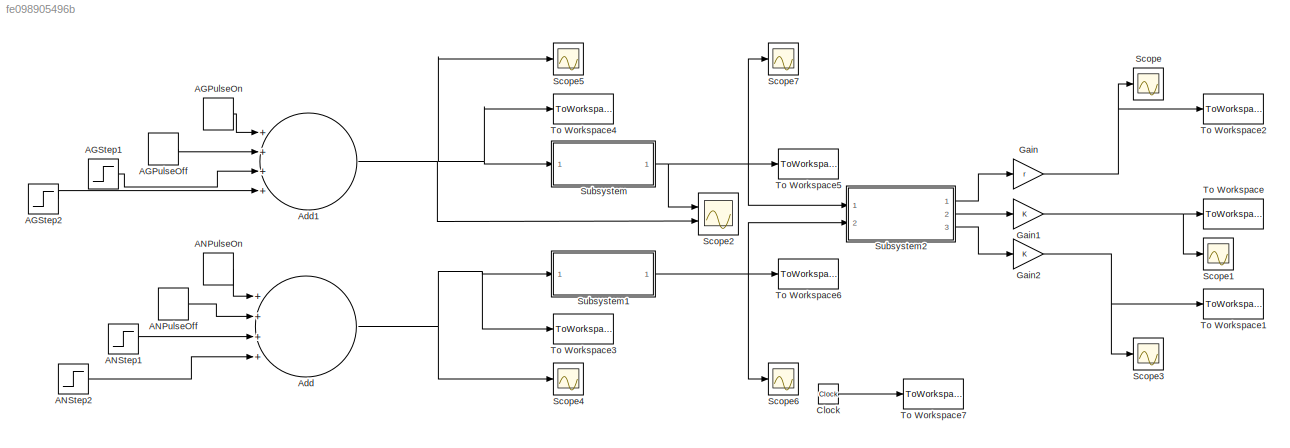
MODEL slx_fe098905496b
KIND model
CONFIG AbsTol = auto
CONFIG EnableMultiTasking = off
CONFIG FixedStep = auto
CONFIG MaxStep = auto
CONFIG MinStep = auto
CONFIG RelTol = 1e-3
CONFIG SampleTimeConstraint = Unconstrained
CONFIG Solver = VariableStepAuto
CONFIG SolverName = VariableStepAuto
CONFIG StartTime = constant*(i-1)/(velocity/fps)
CONFIG StopTime = 3
BLOCK [DiscretePulseGenerator] AGPulseOff
  Amplitude = -N_AG_Pulse
  Period = 2*PW
  PhaseDelay = zero+2*PW
  Ports = [0, 1]
  PulseType = Time based
  PulseWidth = 50
BLOCK [DiscretePulseGenerator] AGPulseOn
  Amplitude = N_AG_Pulse
  Period = 2*PW
  PhaseDelay = zero
  Ports = [0, 1]
  PulseType = Time based
  PulseWidth = 50
BLOCK [Step] AGStep1
  After = N_AG_Step
  SampleTime = 0
  Time = zero+PW
BLOCK [Step] AGStep2
  After = 0
  Before = 16
  SampleTime = 0
  Time = zero
BLOCK [DiscretePulseGenerator] ANPulseOff
  Amplitude = -N_AN_Pulse
  Period = 2*PW
  PhaseDelay = zero+2*PW-0.003
  Ports = [0, 1]
  PulseType = Time based
  PulseWidth = 65
BLOCK [DiscretePulseGenerator] ANPulseOn
  Amplitude = N_AN_Pulse
  Period = 2*PW
  PhaseDelay = zero-0.003
  Ports = [0, 1]
  PulseType = Time based
  PulseWidth = 65
BLOCK [Step] ANStep1
  After = N_AN_Step
  SampleTime = 0
  Time = zero+PW+0.003
BLOCK [Step] ANStep2
  After = 0
  Before = 16
  SampleTime = 0
  Time = zero-0.003
BLOCK [Sum] Add
  InputSameDT = off
  Inputs = ++++
  OutDataTypeStr = Inherit: Inherit via internal rule
  Ports = [4, 1]
  SaturateOnIntegerOverflow = off
BLOCK [Sum] Add1
  InputSameDT = off
  Inputs = ++++
  OutDataTypeStr = Inherit: Inherit via internal rule
  Ports = [4, 1]
  SaturateOnIntegerOverflow = off
BLOCK [Clock] Clock
  Decimation = 1
BLOCK [Gain] Gain
  Gain = r
  OutDataTypeStr = Inherit: Inherit via internal rule
  ParamDataTypeStr = Inherit: Inherit via internal rule
  SaturateOnIntegerOverflow = off
BLOCK [Gain] Gain1
  OutDataTypeStr = Inherit: Inherit via internal rule
  ParamDataTypeStr = Inherit: Inherit via internal rule
  SaturateOnIntegerOverflow = off
BLOCK [Gain] Gain2
  OutDataTypeStr = Inherit: Inherit via internal rule
  ParamDataTypeStr = Inherit: Inherit via internal rule
  SaturateOnIntegerOverflow = off
BLOCK [Scope] Scope
  Floating = off
  NumInputPorts = 1
  Ports = [1]
  ScopeSpecificationString = Simulink.scopes.TimeScopeBlockCfg('CurrentConfiguration', extmgr.ConfigurationSet(extmgr.Configuration('Core','General UI',true),extmgr.Configuration('Core','Source UI',true),extmgr.Configuration('Sources','WiredSimulink',true),extmgr.Configuration('Visuals','Time Domain',true,'SerializedDisplays',{struct('MinYLimReal','-324.584801','MaxYLimReal','-324.58479','YLabelReal','','MinYLimMag',' 0.00000...<+1405ch>
BLOCK [Scope] Scope1
  Floating = off
  NumInputPorts = 1
  Ports = [1]
  ScopeSpecificationString = Simulink.scopes.TimeScopeBlockCfg('CurrentConfiguration', extmgr.ConfigurationSet(extmgr.Configuration('Core','General UI',true),extmgr.Configuration('Core','Source UI',true),extmgr.Configuration('Sources','WiredSimulink',true,'DataLoggingVariableName','ScopeData1'),extmgr.Configuration('Visuals','Time Domain',true,'SerializedDisplays',{struct('MinYLimReal','-172.61492','MaxYLimReal','509.18998','...<+1378ch>
BLOCK [Scope] Scope2
  Floating = off
  NumInputPorts = 2
  Ports = [2]
  ScopeSpecificationString = Simulink.scopes.TimeScopeBlockCfg('CurrentConfiguration', extmgr.ConfigurationSet(extmgr.Configuration('Core','General UI',true),extmgr.Configuration('Core','Source UI',true),extmgr.Configuration('Sources','WiredSimulink',true,'DataLoggingVariableName','ScopeData2'),extmgr.Configuration('Visuals','Time Domain',true,'SerializedDisplays',{struct('MinYLimReal','-6.625','MaxYLimReal','56.03651','YLabe...<+1434ch>
BLOCK [Scope] Scope3
  Floating = off
  NumInputPorts = 1
  Ports = [1]
  ScopeSpecificationString = Simulink.scopes.TimeScopeBlockCfg('CurrentConfiguration', extmgr.ConfigurationSet(extmgr.Configuration('Core','General UI',true),extmgr.Configuration('Core','Source UI',true),extmgr.Configuration('Sources','WiredSimulink',true,'DataLoggingVariableName','ScopeData3'),extmgr.Configuration('Visuals','Time Domain',true,'SerializedDisplays',{struct('MinYLimReal','-11808.78728','MaxYLimReal','19661.0152...<+1394ch>
BLOCK [Scope] Scope4
  Floating = off
  NumInputPorts = 1
  Ports = [1]
  ScopeSpecificationString = Simulink.scopes.TimeScopeBlockCfg('CurrentConfiguration', extmgr.ConfigurationSet(extmgr.Configuration('Core','General UI',true),extmgr.Configuration('Core','Source UI',true),extmgr.Configuration('Sources','WiredSimulink',true,'DataLoggingVariableName','ScopeData4'),extmgr.Configuration('Visuals','Time Domain',true,'SerializedDisplays',{struct('MinYLimReal','-2.00000','MaxYLimReal','18.00000','YLa...<+1406ch>
BLOCK [Scope] Scope5
  Floating = off
  NumInputPorts = 1
  Ports = [1]
  ScopeSpecificationString = Simulink.scopes.TimeScopeBlockCfg('CurrentConfiguration', extmgr.ConfigurationSet(extmgr.Configuration('Core','General UI',true),extmgr.Configuration('Core','Source UI',true),extmgr.Configuration('Sources','WiredSimulink',true,'DataLoggingVariableName','ScopeData5'),extmgr.Configuration('Visuals','Time Domain',true,'SerializedDisplays',{struct('MinYLimReal','12.96','MaxYLimReal','43.36','YLabelRea...<+1387ch>
BLOCK [Scope] Scope6
  Floating = off
  NumInputPorts = 1
  Ports = [1]
  ScopeSpecificationString = Simulink.scopes.TimeScopeBlockCfg('CurrentConfiguration', extmgr.ConfigurationSet(extmgr.Configuration('Core','General UI',true),extmgr.Configuration('Core','Source UI',true),extmgr.Configuration('Sources','WiredSimulink',true,'DataLoggingVariableName','ScopeData6'),extmgr.Configuration('Visuals','Time Domain',true,'SerializedDisplays',{struct('MinYLimReal','-1.772','MaxYLimReal','15.948','YLabelR...<+1361ch>
BLOCK [Scope] Scope7
  Floating = off
  NumInputPorts = 1
  Ports = [1]
  ScopeSpecificationString = Simulink.scopes.TimeScopeBlockCfg('CurrentConfiguration', extmgr.ConfigurationSet(extmgr.Configuration('Core','General UI',true),extmgr.Configuration('Core','Source UI',true),extmgr.Configuration('Sources','WiredSimulink',true,'DataLoggingVariableName','ScopeData7'),extmgr.Configuration('Visuals','Time Domain',true,'SerializedDisplays',{struct('MinYLimReal','25.98554','MaxYLimReal','38.87139','YLa...<+1770ch>
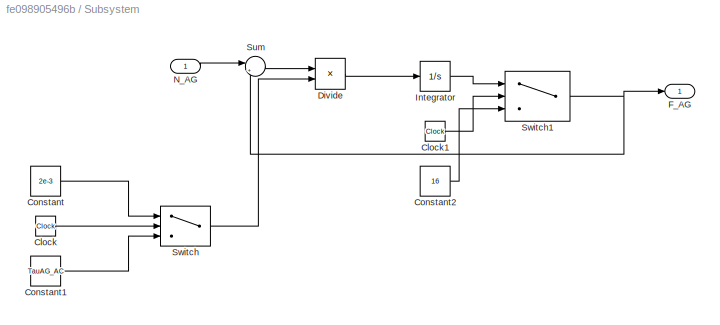
BLOCK [SubSystem] Subsystem
  Ports = [1, 1]
  RequestExecContextInheritance = off
BLOCK [Clock] Subsystem/Clock
  Decimation = 1
BLOCK [Clock] Subsystem/Clock1
  Decimation = 1
BLOCK [Constant] Subsystem/Constant
  Value = 2e-3
BLOCK [Constant] Subsystem/Constant1
  Value = TauAG_AC
BLOCK [Constant] Subsystem/Constant2
  Value = 16
BLOCK [Product] Subsystem/Divide
  InputSameDT = off
  Inputs = */
  OutDataTypeStr = Inherit: Inherit via internal rule
  Ports = [2, 1]
  RndMeth = Floor
  SaturateOnIntegerOverflow = off
BLOCK [Outport] Subsystem/F_AG
  IconDisplay = Port number
BLOCK [Integrator] Subsystem/Integrator
  Ports = [1, 1]
BLOCK [Inport] Subsystem/N_AG
  IconDisplay = Port number
BLOCK [Sum] Subsystem/Sum
  IconShape = round
  InputSameDT = off
  Inputs = |+-
  OutDataTypeStr = Inherit: Inherit via internal rule
  Ports = [2, 1]
  SaturateOnIntegerOverflow = off
BLOCK [Switch] Subsystem/Switch
  Criteria = u2 > Threshold
  InputSameDT = off
  SaturateOnIntegerOverflow = off
  Threshold = zero+PW+5e-4
BLOCK [Switch] Subsystem/Switch1
  Criteria = u2 > Threshold
  InputSameDT = off
  SaturateOnIntegerOverflow = off
  Threshold = 0.01
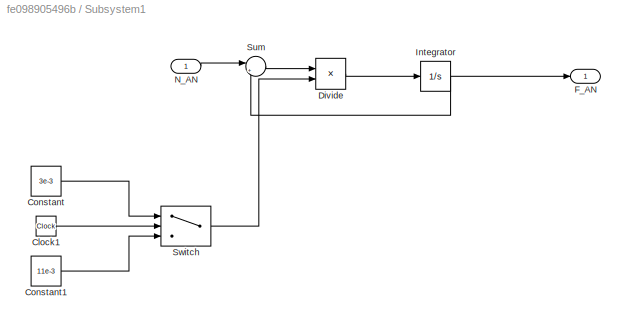
BLOCK [SubSystem] Subsystem1
  Ports = [1, 1]
  RequestExecContextInheritance = off
BLOCK [Clock] Subsystem1/Clock1
  Decimation = 1
BLOCK [Constant] Subsystem1/Constant
  Value = 3e-3
BLOCK [Constant] Subsystem1/Constant1
  Value = 11e-3
BLOCK [Product] Subsystem1/Divide
  InputSameDT = off
  Inputs = */
  OutDataTypeStr = Inherit: Inherit via internal rule
  Ports = [2, 1]
  RndMeth = Floor
  SaturateOnIntegerOverflow = off
BLOCK [Outport] Subsystem1/F_AN
  IconDisplay = Port number
BLOCK [Integrator] Subsystem1/Integrator
  Ports = [1, 1]
BLOCK [Inport] Subsystem1/N_AN
  IconDisplay = Port number
BLOCK [Sum] Subsystem1/Sum
  IconShape = round
  InputSameDT = off
  Inputs = |+-
  OutDataTypeStr = Inherit: Inherit via internal rule
  Ports = [2, 1]
  SaturateOnIntegerOverflow = off
BLOCK [Switch] Subsystem1/Switch
  Criteria = u2 > Threshold
  InputSameDT = off
  SaturateOnIntegerOverflow = off
  Threshold = zero+PW+5e-4
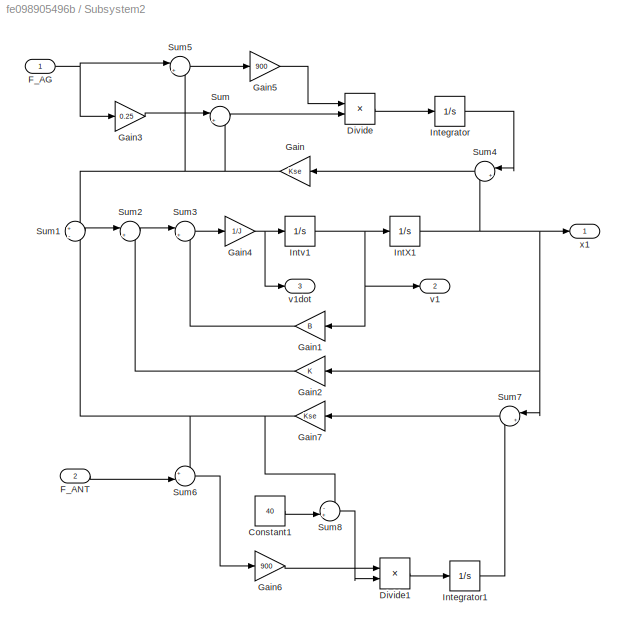
BLOCK [SubSystem] Subsystem2
  Ports = [2, 3]
  RequestExecContextInheritance = off
BLOCK [Constant] Subsystem2/Constant1
  Value = 40
BLOCK [Product] Subsystem2/Divide
  InputSameDT = off
  Inputs = */
  OutDataTypeStr = Inherit: Inherit via internal rule
  Ports = [2, 1]
  RndMeth = Floor
  SaturateOnIntegerOverflow = off
BLOCK [Product] Subsystem2/Divide1
  InputSameDT = off
  Inputs = */
  OutDataTypeStr = Inherit: Inherit via internal rule
  Ports = [2, 1]
  RndMeth = Floor
  SaturateOnIntegerOverflow = off
BLOCK [Inport] Subsystem2/F_AG
  IconDisplay = Port number
BLOCK [Inport] Subsystem2/F_ANT
  IconDisplay = Port number
  Port = 2
BLOCK [Gain] Subsystem2/Gain
  Gain = Kse
  OutDataTypeStr = Inherit: Inherit via internal rule
  ParamDataTypeStr = Inherit: Inherit via internal rule
  SaturateOnIntegerOverflow = off
BLOCK [Gain] Subsystem2/Gain1
  Gain = B
  OutDataTypeStr = Inherit: Inherit via internal rule
  ParamDataTypeStr = Inherit: Inherit via internal rule
  SaturateOnIntegerOverflow = off
BLOCK [Gain] Subsystem2/Gain2
  Gain = K
  OutDataTypeStr = Inherit: Inherit via internal rule
  ParamDataTypeStr = Inherit: Inherit via internal rule
  SaturateOnIntegerOverflow = off
BLOCK [Gain] Subsystem2/Gain3
  Gain = 0.25
  OutDataTypeStr = Inherit: Inherit via internal rule
  ParamDataTypeStr = Inherit: Inherit via internal rule
  SaturateOnIntegerOverflow = off
BLOCK [Gain] Subsystem2/Gain4
  Gain = 1/J
  OutDataTypeStr = Inherit: Inherit via internal rule
  ParamDataTypeStr = Inherit: Inherit via internal rule
  SaturateOnIntegerOverflow = off
BLOCK [Gain] Subsystem2/Gain5
  Gain = 900
  OutDataTypeStr = Inherit: Inherit via internal rule
  ParamDataTypeStr = Inherit: Inherit via internal rule
  SaturateOnIntegerOverflow = off
BLOCK [Gain] Subsystem2/Gain6
  Gain = 900
  OutDataTypeStr = Inherit: Inherit via internal rule
  ParamDataTypeStr = Inherit: Inherit via internal rule
  SaturateOnIntegerOverflow = off
BLOCK [Gain] Subsystem2/Gain7
  Gain = Kse
  OutDataTypeStr = Inherit: Inherit via internal rule
  ParamDataTypeStr = Inherit: Inherit via internal rule
  SaturateOnIntegerOverflow = off
BLOCK [Integrator] Subsystem2/IntX1
  Ports = [1, 1]
BLOCK [Integrator] Subsystem2/Integrator
  Ports = [1, 1]
BLOCK [Integrator] Subsystem2/Integrator1
  Ports = [1, 1]
BLOCK [Integrator] Subsystem2/Intv1
  Ports = [1, 1]
BLOCK [Sum] Subsystem2/Sum
  IconShape = round
  InputSameDT = off
  Inputs = |++
  OutDataTypeStr = Inherit: Inherit via internal rule
  Ports = [2, 1]
  SaturateOnIntegerOverflow = off
BLOCK [Sum] Subsystem2/Sum1
  IconShape = round
  InputSameDT = off
  Inputs = +|-
  OutDataTypeStr = Inherit: Inherit via internal rule
  Ports = [2, 1]
  SaturateOnIntegerOverflow = off
BLOCK [Sum] Subsystem2/Sum2
  IconShape = round
  InputSameDT = off
  Inputs = |+-
  OutDataTypeStr = Inherit: Inherit via internal rule
  Ports = [2, 1]
  SaturateOnIntegerOverflow = off
BLOCK [Sum] Subsystem2/Sum3
  IconShape = round
  InputSameDT = off
  Inputs = |+-
  OutDataTypeStr = Inherit: Inherit via internal rule
  Ports = [2, 1]
  SaturateOnIntegerOverflow = off
BLOCK [Sum] Subsystem2/Sum4
  IconShape = round
  InputSameDT = off
  Inputs = |+-
  OutDataTypeStr = Inherit: Inherit via internal rule
  Ports = [2, 1]
  SaturateOnIntegerOverflow = off
BLOCK [Sum] Subsystem2/Sum5
  IconShape = round
  InputSameDT = off
  Inputs = |+-
  OutDataTypeStr = Inherit: Inherit via internal rule
  Ports = [2, 1]
  SaturateOnIntegerOverflow = off
BLOCK [Sum] Subsystem2/Sum6
  IconShape = round
  InputSameDT = off
  Inputs = +-|
  OutDataTypeStr = Inherit: Inherit via internal rule
  Ports = [2, 1]
  SaturateOnIntegerOverflow = off
BLOCK [Sum] Subsystem2/Sum7
  IconShape = round
  InputSameDT = off
  Inputs = |+-
  OutDataTypeStr = Inherit: Inherit via internal rule
  Ports = [2, 1]
  SaturateOnIntegerOverflow = off
BLOCK [Sum] Subsystem2/Sum8
  IconShape = round
  InputSameDT = off
  Inputs = -+|
  OutDataTypeStr = Inherit: Inherit via internal rule
  Ports = [2, 1]
  SaturateOnIntegerOverflow = off
BLOCK [Outport] Subsystem2/v1
  IconDisplay = Port number
  Port = 2
BLOCK [Outport] Subsystem2/v1dot
  IconDisplay = Port number
  Port = 3
BLOCK [Outport] Subsystem2/x1 
  IconDisplay = Port number
BLOCK [ToWorkspace] To Workspace
  FixptAsFi = on
  MaxDataPoints = inf
  Ports = [1]
  SampleTime = -1
  SaveFormat = Timeseries
  VariableName = Velocity
BLOCK [ToWorkspace] To Workspace1
  FixptAsFi = on
  MaxDataPoints = inf
  Ports = [1]
  SampleTime = -1
  SaveFormat = Timeseries
  VariableName = Acceleration
BLOCK [ToWorkspace] To Workspace2
  FixptAsFi = on
  MaxDataPoints = inf
  Ports = [1]
  SampleTime = -1
  VariableName = theta
BLOCK [ToWorkspace] To Workspace3
  FixptAsFi = on
  MaxDataPoints = inf
  Ports = [1]
  SampleTime = -1
  SaveFormat = Timeseries
  VariableName = N_AN
BLOCK [ToWorkspace] To Workspace4
  FixptAsFi = on
  MaxDataPoints = inf
  Ports = [1]
  SampleTime = -1
  SaveFormat = Timeseries
  VariableName = N_AG
BLOCK [ToWorkspace] To Workspace5
  FixptAsFi = on
  MaxDataPoints = inf
  Ports = [1]
  SampleTime = -1
  SaveFormat = Timeseries
  VariableName = F_AG
BLOCK [ToWorkspace] To Workspace6
  FixptAsFi = on
  MaxDataPoints = inf
  Ports = [1]
  SampleTime = -1
  SaveFormat = Timeseries
  VariableName = F_AN
BLOCK [ToWorkspace] To Workspace7
  FixptAsFi = on
  MaxDataPoints = inf
  Ports = [1]
  SampleTime = -1
  VariableName = t
LINE AGPulseOff:1 -> Add1:2
LINE AGPulseOn:1 -> Add1:1
LINE AGStep1:1 -> Add1:3
LINE AGStep2:1 -> Add1:4
LINE ANPulseOff:1 -> Add:2
LINE ANPulseOn:1 -> Add:1
LINE ANStep1:1 -> Add:3
LINE ANStep2:1 -> Add:4
NET Add1:1 -> Scope2:2, Scope5:1, Subsystem:1, To Workspace4:1
NET Add:1 -> Scope4:1, Subsystem1:1, To Workspace3:1
LINE Clock:1 -> To Workspace7:1
NET Gain1:1 -> Scope1:1, To Workspace:1
NET Gain2:1 -> Scope3:1, To Workspace1:1
NET Gain:1 -> Scope:1, To Workspace2:1
LINE Subsystem/Clock1:1 -> Subsystem/Switch1:2
LINE Subsystem/Clock:1 -> Subsystem/Switch:2
LINE Subsystem/Constant1:1 -> Subsystem/Switch:3
LINE Subsystem/Constant2:1 -> Subsystem/Switch1:3
LINE Subsystem/Constant:1 -> Subsystem/Switch:1
LINE Subsystem/Divide:1 -> Subsystem/Integrator:1
LINE Subsystem/Integrator:1 -> Subsystem/Switch1:1
LINE Subsystem/N_AG:1 -> Subsystem/Sum:1
LINE Subsystem/Sum:1 -> Subsystem/Divide:1
NET Subsystem/Switch1:1 -> Subsystem/F_AG:1, Subsystem/Sum:2
LINE Subsystem/Switch:1 -> Subsystem/Divide:2
LINE Subsystem1/Clock1:1 -> Subsystem1/Switch:2
LINE Subsystem1/Constant1:1 -> Subsystem1/Switch:3
LINE Subsystem1/Constant:1 -> Subsystem1/Switch:1
LINE Subsystem1/Divide:1 -> Subsystem1/Integrator:1
NET Subsystem1/Integrator:1 -> Subsystem1/F_AN:1, Subsystem1/Sum:2
LINE Subsystem1/N_AN:1 -> Subsystem1/Sum:1
LINE Subsystem1/Sum:1 -> Subsystem1/Divide:1
LINE Subsystem1/Switch:1 -> Subsystem1/Divide:2
NET Subsystem1:1 -> Scope6:1, Subsystem2:2, To Workspace6:1
LINE Subsystem2/Constant1:1 -> Subsystem2/Sum8:2
LINE Subsystem2/Divide1:1 -> Subsystem2/Integrator1:1
LINE Subsystem2/Divide:1 -> Subsystem2/Integrator:1
NET Subsystem2/F_AG:1 -> Subsystem2/Gain3:1, Subsystem2/Sum5:1
LINE Subsystem2/F_ANT:1 -> Subsystem2/Sum6:2
LINE Subsystem2/Gain1:1 -> Subsystem2/Sum3:2
LINE Subsystem2/Gain2:1 -> Subsystem2/Sum2:2
LINE Subsystem2/Gain3:1 -> Subsystem2/Sum:1
NET Subsystem2/Gain4:1 -> Subsystem2/Intv1:1, Subsystem2/v1dot:1
LINE Subsystem2/Gain5:1 -> Subsystem2/Divide:1
LINE Subsystem2/Gain6:1 -> Subsystem2/Divide1:1
NET Subsystem2/Gain7:1 -> Subsystem2/Sum1:2, Subsystem2/Sum6:1, Subsystem2/Sum8:1
NET Subsystem2/Gain:1 -> Subsystem2/Sum1:1, Subsystem2/Sum5:2, Subsystem2/Sum:2
NET Subsystem2/IntX1:1 -> Subsystem2/Gain2:1, Subsystem2/Sum4:2, Subsystem2/Sum7:1, Subsystem2/x1 :1
LINE Subsystem2/Integrator1:1 -> Subsystem2/Sum7:2
LINE Subsystem2/Integrator:1 -> Subsystem2/Sum4:1
NET Subsystem2/Intv1:1 -> Subsystem2/Gain1:1, Subsystem2/IntX1:1, Subsystem2/v1:1
LINE Subsystem2/Sum1:1 -> Subsystem2/Sum2:1
LINE Subsystem2/Sum2:1 -> Subsystem2/Sum3:1
LINE Subsystem2/Sum3:1 -> Subsystem2/Gain4:1
LINE Subsystem2/Sum4:1 -> Subsystem2/Gain:1
LINE Subsystem2/Sum5:1 -> Subsystem2/Gain5:1
LINE Subsystem2/Sum6:1 -> Subsystem2/Gain6:1
LINE Subsystem2/Sum7:1 -> Subsystem2/Gain7:1
LINE Subsystem2/Sum8:1 -> Subsystem2/Divide1:2
LINE Subsystem2/Sum:1 -> Subsystem2/Divide:2
LINE Subsystem2:1 -> Gain:1
LINE Subsystem2:2 -> Gain1:1
LINE Subsystem2:3 -> Gain2:1
NET Subsystem:1 -> Scope2:1, Scope7:1, Subsystem2:1, To Workspace5:1
note: NET lines group one-source signal fan-out (src -> all destinations, sorted); 1:1 wires keep LINE
